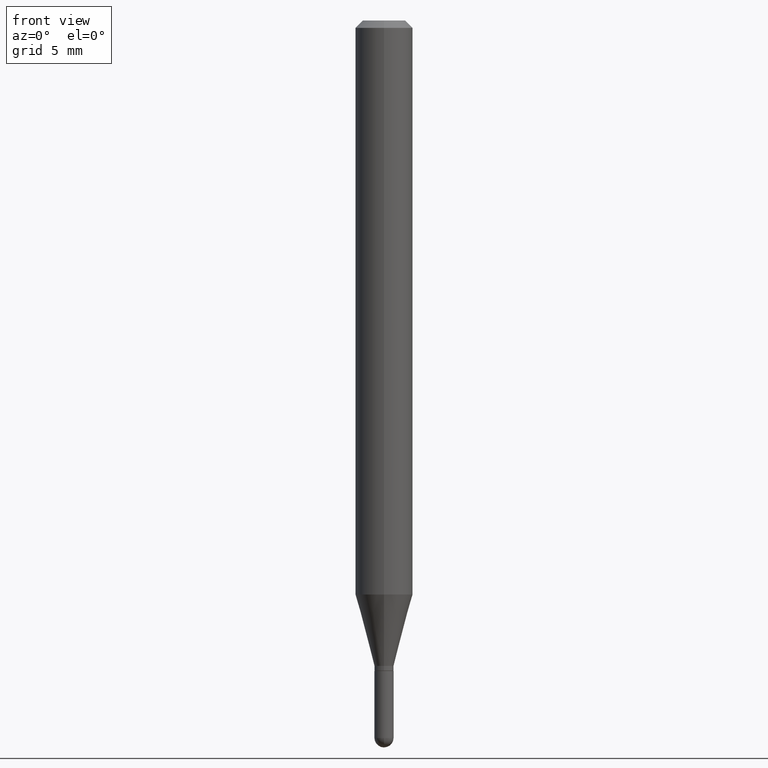
[diagram: clean part render]
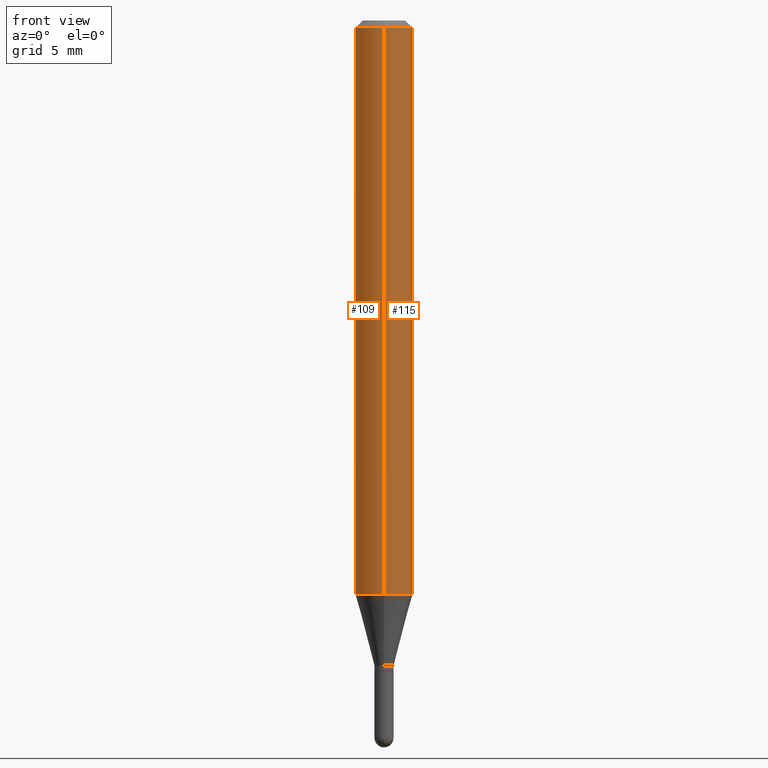
[diagram: same view with one multi-face feature highlighted, each face labeled with its STEP entity id]
A machine part, front view. The highlighted faces form ONE feature: a constant-radius fillet chain: 2 tangent blend faces with common blend radius 1.4999 mm. The faces share edges in the B-rep.
Their STEP definitions:
[1] entity #109 (Cylinder):
#4 = VERTEX_POINT ( 'NONE', #262 ) ;
#12 = CIRCLE ( 'NONE', #459, 0.05905000000000001914 ) ;
#22 = FACE_OUTER_BOUND ( 'NONE', #129, .T. ) ;
#23 = EDGE_CURVE ( 'NONE', #84, #432, #143, .T. ) ;
#28 = DIRECTION ( 'NONE',  ( -6.982962677686265922E-15, -1.000000000000000000, 3.489512315861569973E-15 ) ) ;
#40 = CARTESIAN_POINT ( 'NONE',  ( -4.123439461173741313E-16, -0.05905000000000001914, 2.060557022516257628E-16 ) ) ;
#42 = LINE ( 'NONE', #40, #300 ) ;
#66 = CARTESIAN_POINT ( 'NONE',  ( 4.195754854663678920E-16, 0.05904999999999587662, -1.181243800722164172 ) ) ;
#82 = ORIENTED_EDGE ( 'NONE', *, *, #184, .T. ) ;
#84 = VERTEX_POINT ( 'NONE', #66 ) ;
#100 = AXIS2_PLACEMENT_3D ( 'NONE', #113, #350, #157 ) ;
#109 = ADVANCED_FACE ( 'NONE', ( #22 ), #419, .T. ) ;
#113 = CARTESIAN_POINT ( 'NONE',  ( 3.670265651376586057E-31, -5.234268473792502525E-17, -0.01500000000000042445 ) ) ;
#129 = EDGE_LOOP ( 'NONE', ( #490, #82, #479, #412 ) ) ;
#143 = LINE ( 'NONE', #386, #170 ) ;
#157 = DIRECTION ( 'NONE',  ( -6.982962677686265922E-15, -1.000000000000000000, 3.505890868245044514E-15 ) ) ;
#167 = EDGE_CURVE ( 'NONE', #432, #4, #220, .T. ) ;
#170 = VECTOR ( 'NONE', #460, 39.37007874015748143 ) ;
#177 = AXIS2_PLACEMENT_3D ( 'NONE', #339, #497, #28 ) ;
#184 = EDGE_CURVE ( 'NONE', #84, #283, #12, .T. ) ;
#188 = EDGE_CURVE ( 'NONE', #283, #4, #42, .T. ) ;
#214 = CARTESIAN_POINT ( 'NONE',  ( 4.195754854663682864E-16, 0.05904999999999996363, -0.01500000000000063262 ) ) ;
#220 = CIRCLE ( 'NONE', #100, 0.05905000000000001914 ) ;
#262 = CARTESIAN_POINT ( 'NONE',  ( -4.123439461173737369E-16, -0.05905000000000006771, -0.01500000000000021802 ) ) ;
#271 = CARTESIAN_POINT ( 'NONE',  ( -4.123439461173452886E-16, -0.05905000000000415472, -1.181243800722163728 ) ) ;
#274 = DIRECTION ( 'NONE',  ( -2.446843767584321492E-29, 3.489512315861569973E-15, 1.000000000000000000 ) ) ;
#283 = VERTEX_POINT ( 'NONE', #271 ) ;
#300 = VECTOR ( 'NONE', #357, 39.37007874015748143 ) ;
#339 = CARTESIAN_POINT ( 'NONE',  ( 0.000000000000000000, 0.000000000000000000, 0.000000000000000000 ) ) ;
#350 = DIRECTION ( 'NONE',  ( -2.446843767584321492E-29, 3.489512315861569973E-15, 1.000000000000000000 ) ) ;
#357 = DIRECTION ( 'NONE',  ( -2.446843767584321772E-29, 3.489512315861569973E-15, 1.000000000000000000 ) ) ;
#386 = CARTESIAN_POINT ( 'NONE',  ( 4.195754854663391971E-16, 0.05905000000000001914, -2.060557022516257628E-16 ) ) ;
#400 = DIRECTION ( 'NONE',  ( -6.982962677686265922E-15, -1.000000000000000000, 4.626330217890367758E-15 ) ) ;
#412 = ORIENTED_EDGE ( 'NONE', *, *, #167, .F. ) ;
#419 = CYLINDRICAL_SURFACE ( 'NONE', #177, 0.05905000000000001914 ) ;
#432 = VERTEX_POINT ( 'NONE', #214 ) ;
#459 = AXIS2_PLACEMENT_3D ( 'NONE', #474, #274, #400 ) ;
#460 = DIRECTION ( 'NONE',  ( -2.446843767584321772E-29, 3.489512315861569973E-15, 1.000000000000000000 ) ) ;
#474 = CARTESIAN_POINT ( 'NONE',  ( 2.890319031794642916E-29, -4.121964790655120932E-15, -1.181243800722163950 ) ) ;
#479 = ORIENTED_EDGE ( 'NONE', *, *, #188, .T. ) ;
#490 = ORIENTED_EDGE ( 'NONE', *, *, #23, .F. ) ;
#497 = DIRECTION ( 'NONE',  ( -2.446843767584321492E-29, 3.489512315861569973E-15, 1.000000000000000000 ) ) ;
[2] entity #115 (Cylinder):
#4 = VERTEX_POINT ( 'NONE', #262 ) ;
#23 = EDGE_CURVE ( 'NONE', #84, #432, #143, .T. ) ;
#31 = CYLINDRICAL_SURFACE ( 'NONE', #359, 0.05905000000000001914 ) ;
#33 = DIRECTION ( 'NONE',  ( -6.982962677686265922E-15, -1.000000000000000000, 3.505890868245044514E-15 ) ) ;
#40 = CARTESIAN_POINT ( 'NONE',  ( -4.123439461173741313E-16, -0.05905000000000001914, 2.060557022516257628E-16 ) ) ;
#42 = LINE ( 'NONE', #40, #300 ) ;
#56 = CIRCLE ( 'NONE', #149, 0.05905000000000001914 ) ;
#66 = CARTESIAN_POINT ( 'NONE',  ( 4.195754854663678920E-16, 0.05904999999999587662, -1.181243800722164172 ) ) ;
#69 = CARTESIAN_POINT ( 'NONE',  ( 3.670265651376586057E-31, -5.234268473792502525E-17, -0.01500000000000042445 ) ) ;
#84 = VERTEX_POINT ( 'NONE', #66 ) ;
#115 = ADVANCED_FACE ( 'NONE', ( #299 ), #31, .T. ) ;
#136 = DIRECTION ( 'NONE',  ( -6.982962677686265922E-15, -1.000000000000000000, 3.489512315861569973E-15 ) ) ;
#143 = LINE ( 'NONE', #386, #170 ) ;
#149 = AXIS2_PLACEMENT_3D ( 'NONE', #439, #326, #489 ) ;
#170 = VECTOR ( 'NONE', #460, 39.37007874015748143 ) ;
#188 = EDGE_CURVE ( 'NONE', #283, #4, #42, .T. ) ;
#214 = CARTESIAN_POINT ( 'NONE',  ( 4.195754854663682864E-16, 0.05904999999999996363, -0.01500000000000063262 ) ) ;
#222 = DIRECTION ( 'NONE',  ( -2.446843767584321492E-29, 3.489512315861569973E-15, 1.000000000000000000 ) ) ;
#233 = EDGE_LOOP ( 'NONE', ( #481, #475, #488, #445 ) ) ;
#256 = CARTESIAN_POINT ( 'NONE',  ( 0.000000000000000000, 0.000000000000000000, 0.000000000000000000 ) ) ;
#262 = CARTESIAN_POINT ( 'NONE',  ( -4.123439461173737369E-16, -0.05905000000000006771, -0.01500000000000021802 ) ) ;
#271 = CARTESIAN_POINT ( 'NONE',  ( -4.123439461173452886E-16, -0.05905000000000415472, -1.181243800722163728 ) ) ;
#283 = VERTEX_POINT ( 'NONE', #271 ) ;
#285 = EDGE_CURVE ( 'NONE', #4, #432, #510, .T. ) ;
#299 = FACE_OUTER_BOUND ( 'NONE', #233, .T. ) ;
#300 = VECTOR ( 'NONE', #357, 39.37007874015748143 ) ;
#326 = DIRECTION ( 'NONE',  ( -2.446843767584321492E-29, 3.489512315861569973E-15, 1.000000000000000000 ) ) ;
#357 = DIRECTION ( 'NONE',  ( -2.446843767584321772E-29, 3.489512315861569973E-15, 1.000000000000000000 ) ) ;
#359 = AXIS2_PLACEMENT_3D ( 'NONE', #256, #222, #136 ) ;
#370 = AXIS2_PLACEMENT_3D ( 'NONE', #69, #433, #33 ) ;
#386 = CARTESIAN_POINT ( 'NONE',  ( 4.195754854663391971E-16, 0.05905000000000001914, -2.060557022516257628E-16 ) ) ;
#432 = VERTEX_POINT ( 'NONE', #214 ) ;
#433 = DIRECTION ( 'NONE',  ( -2.446843767584321492E-29, 3.489512315861569973E-15, 1.000000000000000000 ) ) ;
#439 = CARTESIAN_POINT ( 'NONE',  ( 2.890319031794642916E-29, -4.121964790655120932E-15, -1.181243800722163950 ) ) ;
#444 = EDGE_CURVE ( 'NONE', #283, #84, #56, .T. ) ;
#445 = ORIENTED_EDGE ( 'NONE', *, *, #188, .F. ) ;
#460 = DIRECTION ( 'NONE',  ( -2.446843767584321772E-29, 3.489512315861569973E-15, 1.000000000000000000 ) ) ;
#475 = ORIENTED_EDGE ( 'NONE', *, *, #23, .T. ) ;
#481 = ORIENTED_EDGE ( 'NONE', *, *, #444, .T. ) ;
#488 = ORIENTED_EDGE ( 'NONE', *, *, #285, .F. ) ;
#489 = DIRECTION ( 'NONE',  ( -6.982962677686265922E-15, -1.000000000000000000, 4.626330217890367758E-15 ) ) ;
#510 = CIRCLE ( 'NONE', #370, 0.05905000000000001914 ) ;